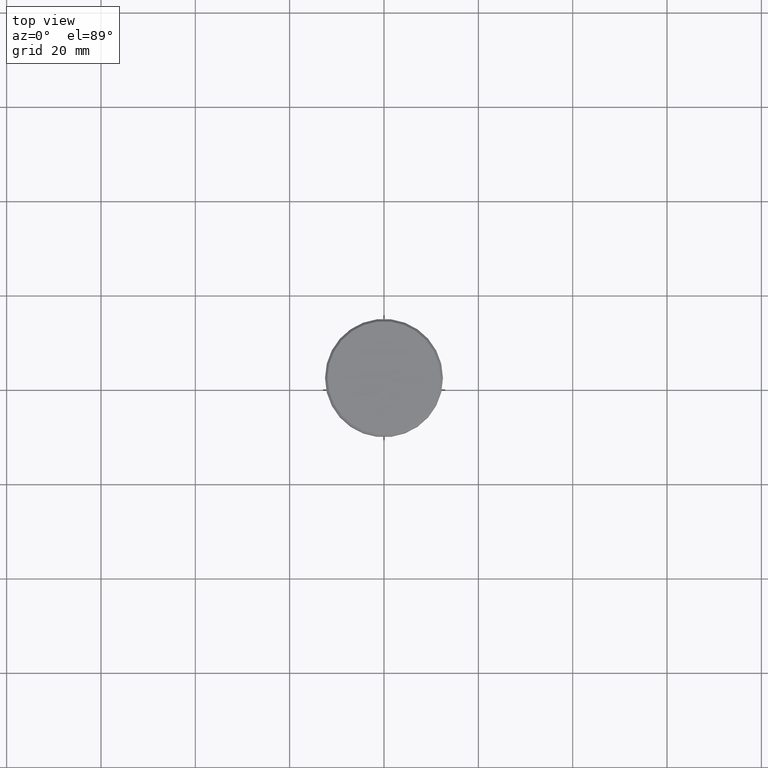
[diagram: clean part render]
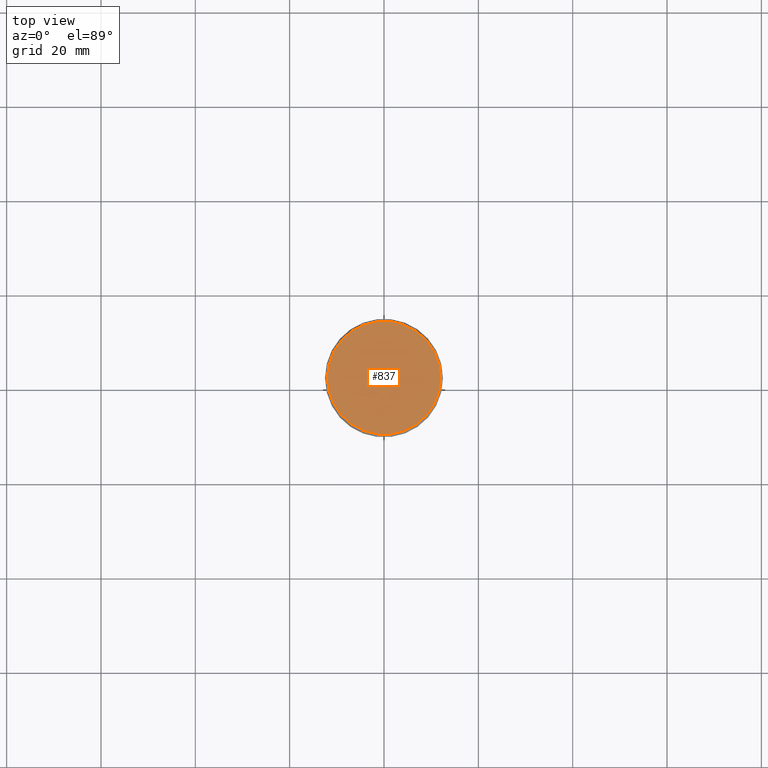
[diagram: same view with one face highlighted and labeled with its STEP entity id]
A machine part, top view. The second image highlights one B-rep face of the part: STEP entity #837.
In plain terms, the highlighted planar face has unit normal (0, -0, 1).
Its self-contained STEP definition (entity closure, byte-faithful):
#70 = VERTEX_POINT ( 'NONE', #454 ) ;
#164 = PLANE ( 'NONE',  #1037 ) ;
#214 = EDGE_CURVE ( 'NONE', #258, #70, #705, .T. ) ;
#258 = VERTEX_POINT ( 'NONE', #1129 ) ;
#342 = DIRECTION ( 'NONE',  ( -0.000000000000000000, -0.000000000000000000, 1.000000000000000000 ) ) ;
#347 = AXIS2_PLACEMENT_3D ( 'NONE', #491, #399, #1021 ) ;
#386 = ORIENTED_EDGE ( 'NONE', *, *, #214, .T. ) ;
#399 = DIRECTION ( 'NONE',  ( -0.000000000000000000, -0.000000000000000000, 1.000000000000000000 ) ) ;
#454 = CARTESIAN_POINT ( 'NONE',  ( -11.99999999999999645, 0.000000000000000000, 0.000000000000000000 ) ) ;
#491 = CARTESIAN_POINT ( 'NONE',  ( 0.000000000000000000, 0.000000000000000000, 0.000000000000000000 ) ) ;
#533 = DIRECTION ( 'NONE',  ( 1.000000000000000000, 0.000000000000000000, 0.000000000000000000 ) ) ;
#585 = AXIS2_PLACEMENT_3D ( 'NONE', #877, #342, #1156 ) ;
#649 = EDGE_LOOP ( 'NONE', ( #745, #386 ) ) ;
#667 = EDGE_CURVE ( 'NONE', #70, #258, #1134, .T. ) ;
#705 = CIRCLE ( 'NONE', #347, 11.99999999999999645 ) ;
#712 = CARTESIAN_POINT ( 'NONE',  ( 0.000000000000000000, 0.000000000000000000, 0.000000000000000000 ) ) ;
#745 = ORIENTED_EDGE ( 'NONE', *, *, #667, .T. ) ;
#837 = ADVANCED_FACE ( 'NONE', ( #1067 ), #164, .T. ) ;
#877 = CARTESIAN_POINT ( 'NONE',  ( 0.000000000000000000, 0.000000000000000000, 0.000000000000000000 ) ) ;
#968 = DIRECTION ( 'NONE',  ( 0.000000000000000000, -0.000000000000000000, 1.000000000000000000 ) ) ;
#1021 = DIRECTION ( 'NONE',  ( 1.000000000000000000, 0.000000000000000000, 0.000000000000000000 ) ) ;
#1037 = AXIS2_PLACEMENT_3D ( 'NONE', #712, #968, #533 ) ;
#1067 = FACE_OUTER_BOUND ( 'NONE', #649, .T. ) ;
#1129 = CARTESIAN_POINT ( 'NONE',  ( 11.99999999999999645, 1.500192328955507537E-15, 0.000000000000000000 ) ) ;
#1134 = CIRCLE ( 'NONE', #585, 11.99999999999999645 ) ;
#1156 = DIRECTION ( 'NONE',  ( 1.000000000000000000, 0.000000000000000000, 0.000000000000000000 ) ) ;